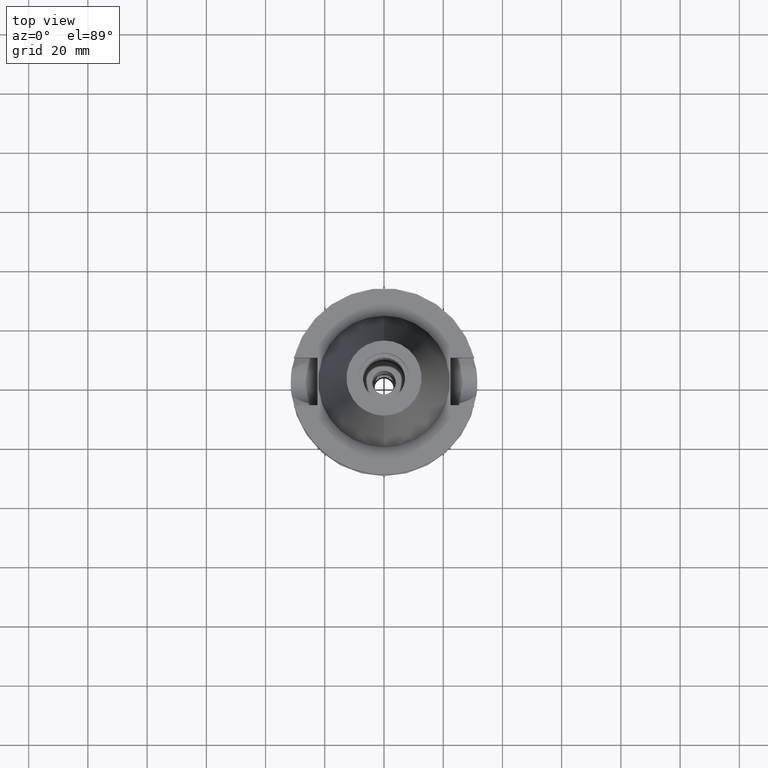
[diagram: clean part render]
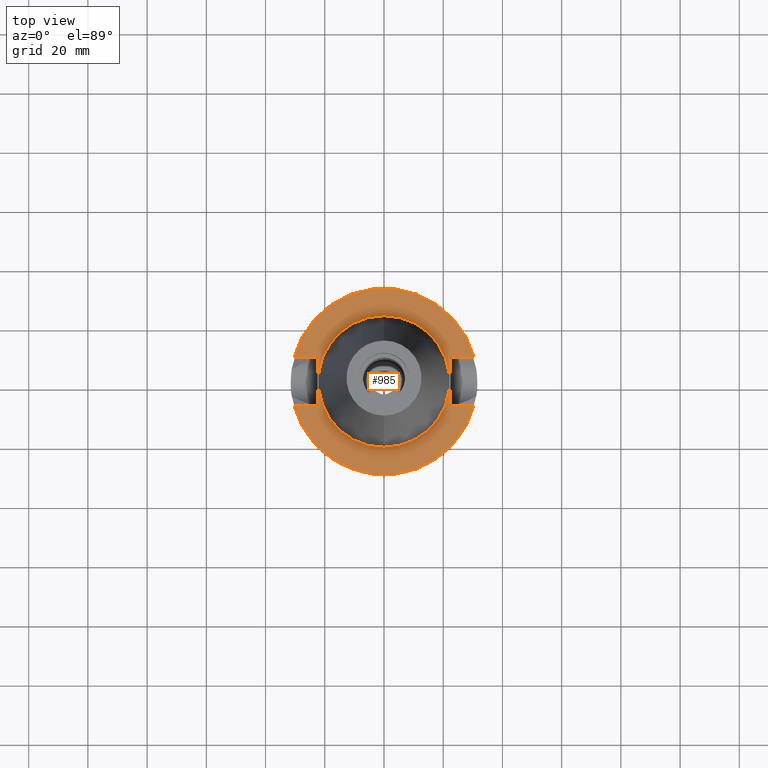
[diagram: same view with one face highlighted and labeled with its STEP entity id]
A machine part, top view. The second image highlights one B-rep face of the part: STEP entity #985.
In plain terms, the highlighted planar face has unit normal (0, 0, -1).
Its self-contained STEP definition (entity closure, byte-faithful):
#13 = VECTOR ( 'NONE', #304, 1000.000000000000000 ) ;
#33 = CARTESIAN_POINT ( 'NONE',  ( 0.0000000000000000000, -22.22500000000000142, -0.9999999999999000799 ) ) ;
#90 = CARTESIAN_POINT ( 'NONE',  ( 0.0000000000000000000, 2.162848711973999723E-14, -1.000000000000000000 ) ) ;
#109 = CARTESIAN_POINT ( 'NONE',  ( 30.45402272279000044, 8.050000000000000711, -1.000000000000000000 ) ) ;
#154 = ORIENTED_EDGE ( 'NONE', *, *, #374, .F. ) ;
#173 = CIRCLE ( 'NONE', #2377, 31.50000000000000000 ) ;
#237 = ORIENTED_EDGE ( 'NONE', *, *, #1521, .F. ) ;
#259 = VECTOR ( 'NONE', #2993, 1000.000000000000000 ) ;
#261 = VECTOR ( 'NONE', #1278, 1000.000000000000000 ) ;
#304 = DIRECTION ( 'NONE',  ( -1.000000000000000000, -3.550916904668000126E-14, 0.0000000000000000000 ) ) ;
#311 = AXIS2_PLACEMENT_3D ( 'NONE', #3031, #1817, #2348 ) ;
#374 = EDGE_CURVE ( 'NONE', #2176, #1825, #1964, .T. ) ;
#438 = EDGE_CURVE ( 'NONE', #2059, #639, #2726, .T. ) ;
#449 = ORIENTED_EDGE ( 'NONE', *, *, #2946, .F. ) ;
#470 = EDGE_CURVE ( 'NONE', #1825, #1516, #2509, .T. ) ;
#477 = CARTESIAN_POINT ( 'NONE',  ( 0.0000000000000000000, 2.162848711973999723E-14, -0.9999999999999000799 ) ) ;
#490 = EDGE_CURVE ( 'NONE', #639, #803, #2222, .T. ) ;
#509 = DIRECTION ( 'NONE',  ( 0.0000000000000000000, 0.0000000000000000000, -1.000000000000000000 ) ) ;
#516 = VERTEX_POINT ( 'NONE', #33 ) ;
#627 = VERTEX_POINT ( 'NONE', #1571 ) ;
#639 = VERTEX_POINT ( 'NONE', #2609 ) ;
#659 = ORIENTED_EDGE ( 'NONE', *, *, #1982, .T. ) ;
#697 = CARTESIAN_POINT ( 'NONE',  ( -22.50000000000000000, -8.050000000000000711, -1.000000000000000000 ) ) ;
#713 = DIRECTION ( 'NONE',  ( 0.0000000000000000000, 1.000000000000000000, 0.0000000000000000000 ) ) ;
#795 = CARTESIAN_POINT ( 'NONE',  ( 22.50000000000000000, -8.050000000000000711, -1.000000000000000000 ) ) ;
#803 = VERTEX_POINT ( 'NONE', #2678 ) ;
#820 = CARTESIAN_POINT ( 'NONE',  ( 22.50000000000000000, 8.050000000000000711, -1.000000000000000000 ) ) ;
#916 = LINE ( 'NONE', #2392, #1240 ) ;
#923 = EDGE_LOOP ( 'NONE', ( #1551, #449, #1374, #1986, #659, #237, #1567, #154 ) ) ;
#955 = EDGE_CURVE ( 'NONE', #2176, #1835, #2514, .T. ) ;
#972 = CARTESIAN_POINT ( 'NONE',  ( -22.50000000000000000, -8.050000000000000711, -1.000000000000000000 ) ) ;
#985 = ADVANCED_FACE ( 'NONE', ( #1108, #1834 ), #2114, .F. ) ;
#1064 = DIRECTION ( 'NONE',  ( 0.0000000000000000000, 0.0000000000000000000, -1.000000000000000000 ) ) ;
#1106 = EDGE_CURVE ( 'NONE', #627, #516, #2972, .T. ) ;
#1108 = FACE_OUTER_BOUND ( 'NONE', #923, .T. ) ;
#1109 = DIRECTION ( 'NONE',  ( 0.0000000000000000000, -1.000000000000000000, 0.0000000000000000000 ) ) ;
#1197 = DIRECTION ( 'NONE',  ( 0.0000000000000000000, 1.000000000000000000, 0.0000000000000000000 ) ) ;
#1240 = VECTOR ( 'NONE', #2371, 1000.000000000000000 ) ;
#1273 = VERTEX_POINT ( 'NONE', #109 ) ;
#1278 = DIRECTION ( 'NONE',  ( 1.000000000000000000, 3.573249715389999860E-14, 0.0000000000000000000 ) ) ;
#1329 = EDGE_CURVE ( 'NONE', #516, #627, #2768, .T. ) ;
#1367 = ORIENTED_EDGE ( 'NONE', *, *, #1329, .F. ) ;
#1374 = ORIENTED_EDGE ( 'NONE', *, *, #490, .F. ) ;
#1452 = DIRECTION ( 'NONE',  ( 0.0000000000000000000, 0.0000000000000000000, 1.000000000000000000 ) ) ;
#1516 = VERTEX_POINT ( 'NONE', #1524 ) ;
#1521 = EDGE_CURVE ( 'NONE', #1516, #1273, #3126, .T. ) ;
#1524 = CARTESIAN_POINT ( 'NONE',  ( -30.45402272279000044, 8.050000000000000711, -1.000000000000000000 ) ) ;
#1551 = ORIENTED_EDGE ( 'NONE', *, *, #955, .T. ) ;
#1567 = ORIENTED_EDGE ( 'NONE', *, *, #470, .F. ) ;
#1571 = CARTESIAN_POINT ( 'NONE',  ( 0.0000000000000000000, 22.22500000000000142, -0.9999999999999000799 ) ) ;
#1584 = CARTESIAN_POINT ( 'NONE',  ( 0.0000000000000000000, 2.162848711973999723E-14, -1.000000000000000000 ) ) ;
#1593 = AXIS2_PLACEMENT_3D ( 'NONE', #477, #1452, #713 ) ;
#1689 = VECTOR ( 'NONE', #1751, 1000.000000000000000 ) ;
#1746 = AXIS2_PLACEMENT_3D ( 'NONE', #1584, #509, #2710 ) ;
#1751 = DIRECTION ( 'NONE',  ( -1.000000000000000000, 3.550916904668000126E-14, 0.0000000000000000000 ) ) ;
#1817 = DIRECTION ( 'NONE',  ( 0.0000000000000000000, 0.0000000000000000000, -1.000000000000000000 ) ) ;
#1825 = VERTEX_POINT ( 'NONE', #3009 ) ;
#1834 = FACE_BOUND ( 'NONE', #2649, .T. ) ;
#1835 = VERTEX_POINT ( 'NONE', #2581 ) ;
#1964 = LINE ( 'NONE', #697, #2668 ) ;
#1982 = EDGE_CURVE ( 'NONE', #2059, #1273, #916, .T. ) ;
#1986 = ORIENTED_EDGE ( 'NONE', *, *, #438, .F. ) ;
#2040 = DIRECTION ( 'NONE',  ( 0.0000000000000000000, -1.000000000000000000, 0.0000000000000000000 ) ) ;
#2059 = VERTEX_POINT ( 'NONE', #2610 ) ;
#2114 = PLANE ( 'NONE',  #311 ) ;
#2176 = VERTEX_POINT ( 'NONE', #972 ) ;
#2222 = LINE ( 'NONE', #795, #261 ) ;
#2329 = DIRECTION ( 'NONE',  ( 0.0000000000000000000, 0.0000000000000000000, 1.000000000000000000 ) ) ;
#2348 = DIRECTION ( 'NONE',  ( 0.0000000000000000000, -1.000000000000000000, 0.0000000000000000000 ) ) ;
#2366 = ORIENTED_EDGE ( 'NONE', *, *, #1106, .F. ) ;
#2371 = DIRECTION ( 'NONE',  ( 1.000000000000000000, -3.506251283225999947E-14, 0.0000000000000000000 ) ) ;
#2377 = AXIS2_PLACEMENT_3D ( 'NONE', #90, #1064, #2040 ) ;
#2392 = CARTESIAN_POINT ( 'NONE',  ( 22.50000000000000000, 8.050000000000000711, -1.000000000000000000 ) ) ;
#2477 = AXIS2_PLACEMENT_3D ( 'NONE', #3051, #2329, #1109 ) ;
#2509 = LINE ( 'NONE', #2940, #13 ) ;
#2514 = LINE ( 'NONE', #2959, #1689 ) ;
#2581 = CARTESIAN_POINT ( 'NONE',  ( -30.45402272279000044, -8.050000000000000711, -1.000000000000000000 ) ) ;
#2609 = CARTESIAN_POINT ( 'NONE',  ( 22.50000000000000000, -8.050000000000000711, -1.000000000000000000 ) ) ;
#2610 = CARTESIAN_POINT ( 'NONE',  ( 22.50000000000000000, 8.050000000000000711, -1.000000000000000000 ) ) ;
#2649 = EDGE_LOOP ( 'NONE', ( #2366, #1367 ) ) ;
#2668 = VECTOR ( 'NONE', #1197, 1000.000000000000000 ) ;
#2678 = CARTESIAN_POINT ( 'NONE',  ( 30.45402272279000044, -8.050000000000000711, -1.000000000000000000 ) ) ;
#2710 = DIRECTION ( 'NONE',  ( 0.0000000000000000000, 1.000000000000000000, 0.0000000000000000000 ) ) ;
#2726 = LINE ( 'NONE', #820, #259 ) ;
#2768 = CIRCLE ( 'NONE', #2477, 22.22500000000000142 ) ;
#2940 = CARTESIAN_POINT ( 'NONE',  ( -22.50000000000000000, 8.050000000000000711, -1.000000000000000000 ) ) ;
#2946 = EDGE_CURVE ( 'NONE', #803, #1835, #173, .T. ) ;
#2959 = CARTESIAN_POINT ( 'NONE',  ( -22.50000000000000000, -8.050000000000000711, -1.000000000000000000 ) ) ;
#2972 = CIRCLE ( 'NONE', #1593, 22.22500000000000142 ) ;
#2993 = DIRECTION ( 'NONE',  ( 0.0000000000000000000, -1.000000000000000000, 0.0000000000000000000 ) ) ;
#3009 = CARTESIAN_POINT ( 'NONE',  ( -22.50000000000000000, 8.050000000000000711, -1.000000000000000000 ) ) ;
#3031 = CARTESIAN_POINT ( 'NONE',  ( 0.0000000000000000000, 1.212400331155999925E-14, -1.000000000000000000 ) ) ;
#3051 = CARTESIAN_POINT ( 'NONE',  ( 0.0000000000000000000, 2.162848711973999723E-14, -0.9999999999999000799 ) ) ;
#3126 = CIRCLE ( 'NONE', #1746, 31.50000000000000000 ) ;